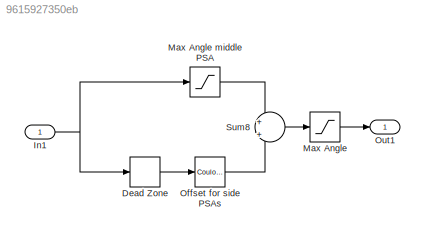
MODEL slx_9615927350eb
KIND model
CONFIG AbsTol = auto
CONFIG FixedStep = 0.0001
CONFIG MaxStep = auto
CONFIG MinStep = auto
CONFIG RelTol = 1e-3
CONFIG SampleTimeConstraint = Unconstrained
CONFIG Solver = ode3
CONFIG SolverMode = Auto
CONFIG SolverName = ode3
CONFIG StartTime = 0.0
CONFIG StopTime = 25
BLOCK [DeadZone] Dead Zone
  LowerValue = -0.3225
  UpperValue = 0.337
BLOCK [Inport] In1
  IconDisplay = Port number
BLOCK [Saturate] Max Angle
  InputPortMap = u0
  LowerLimit = -0.68
  Ports = [1, 1]
  UpperLimit = 0.664
BLOCK [Saturate] Max Angle middle PSA
  InputPortMap = u0
  LowerLimit = -0.1787
  Ports = [1, 1]
  UpperLimit = .1627
BLOCK [Reference] Offset for side PSAs  REF=simulink/Discontinuities/Coulomb &
Viscous Friction
  Ports = [1, 1]
  SourceBlock = simulink/Discontinuities/Coulomb &\nViscous Friction
  SourceType = Coulombic and Viscous Friction
  gain = 1
  offset = [0.225]
BLOCK [Outport] Out1
  IconDisplay = Port number
BLOCK [Sum] Sum8
  IconShape = round
  InputSameDT = off
  Inputs = +|+
  OutDataTypeStr = Inherit: Inherit via internal rule
  Ports = [2, 1]
  SaturateOnIntegerOverflow = off
LINE Dead Zone:1 -> Offset for side PSAs:1
NET In1:1 -> Dead Zone:1, Max Angle middle PSA:1
LINE Max Angle middle PSA:1 -> Sum8:1
LINE Max Angle:1 -> Out1:1
LINE Offset for side PSAs:1 -> Sum8:2
LINE Sum8:1 -> Max Angle:1
note: NET lines group one-source signal fan-out (src -> all destinations, sorted); 1:1 wires keep LINE
